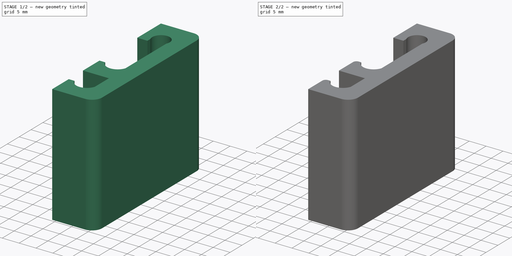
[diagram: build sequence overview — one tinted view per stage of 2, left to right]
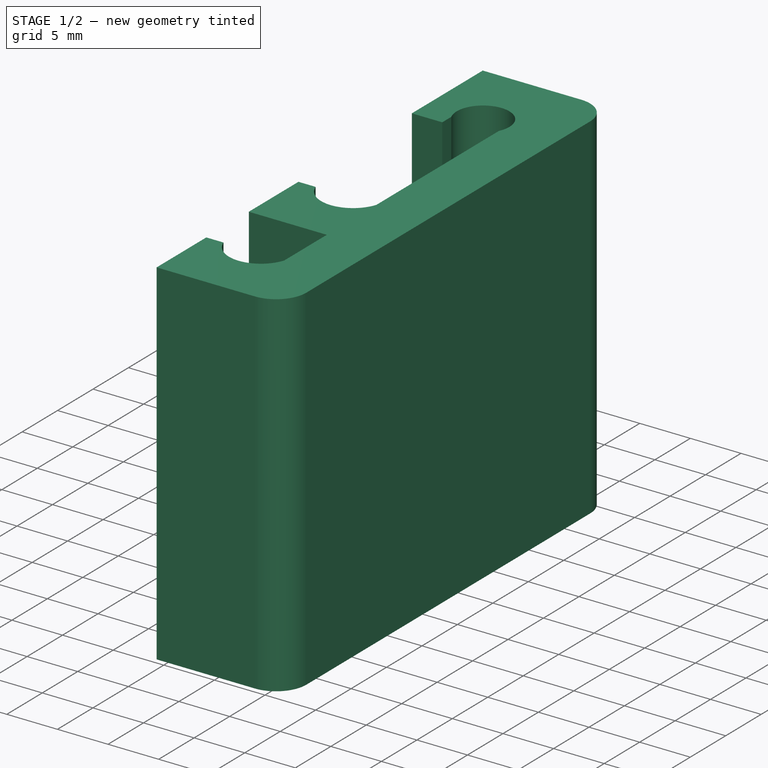
[diagram: stage 1 of 2 — iso view after this stage's code; geometry added in this stage tinted green]
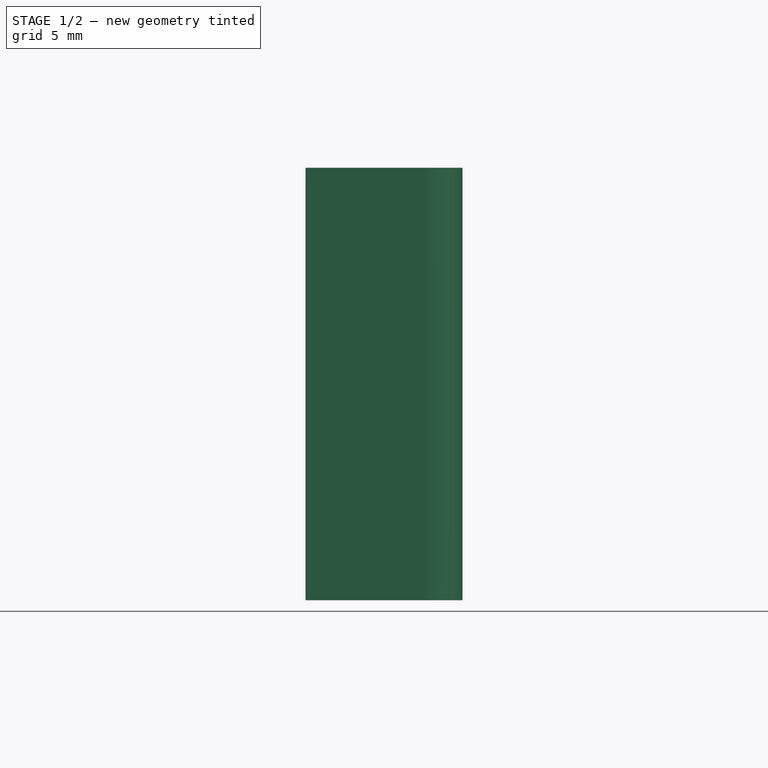
[diagram: stage 1 of 2 — front view after this stage's code; geometry added in this stage tinted green]
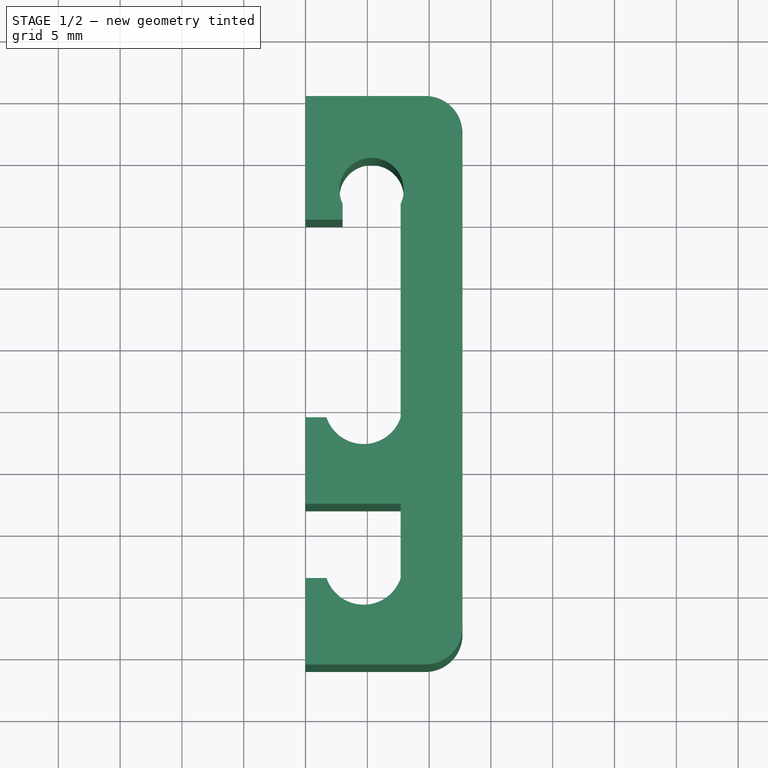
[diagram: stage 1 of 2 — top view after this stage's code; geometry added in this stage tinted green]
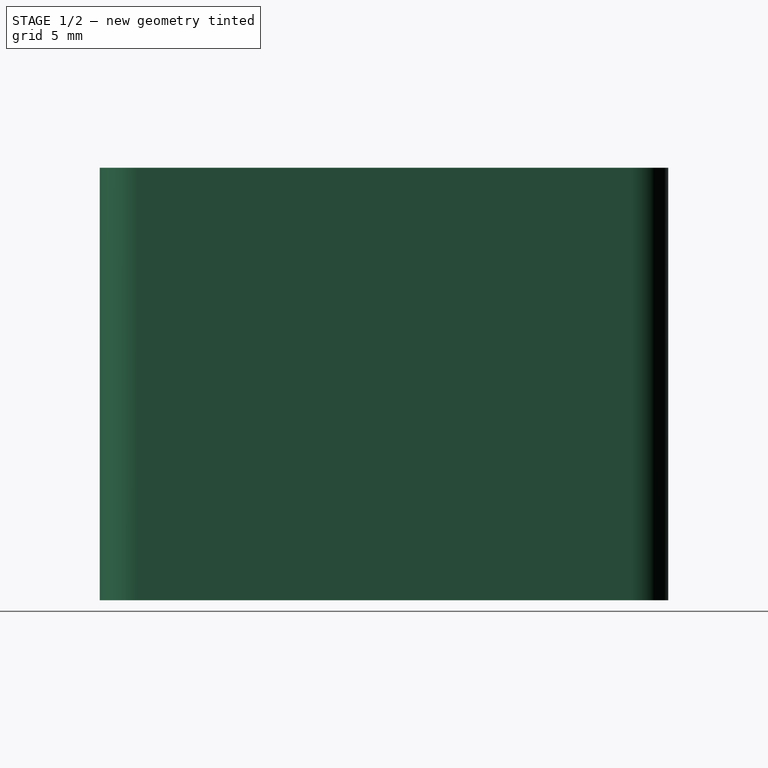
[diagram: stage 1 of 2 — right view after this stage's code; geometry added in this stage tinted green]
FCSTD DOCUMENT  (FreeCAD 0.17R13541 (Git))
Label: SandwichMakerClip
License: All rights reserved
LicenseURL: http://en.wikipedia.org/wiki/All_rights_reserved
objects: Part::Fillet×2, Sketcher::SketchObject×1, PartDesign::Pad×1, PartDesign::Body×1
note: 6 computed .brp shape members not serialized (recipe doc carries the construction recipe); baked Part::Feature solids carry a one-line shape summary decoded from their .brp

FEATURE [Sketcher::SketchObject] Sketch
  MapMode = 5
  Support = -> [XY_Plane]
  expr: Constraints[49] = Constraints.w1
  expr: Constraints[44] = Constraints.c2
  expr: Constraints[27] = 21mm - Constraints.upperRadius
  expr: Constraints[20] = Constraints.upperRadius + 5mm
  expr: Constraints[45] = Constraints.c3
  expr: Constraints[43] = Constraints.c1
  sketch-geometry (16):
    g0: LineSegment StartX=0 StartY=0 StartZ=0 EndX=0 EndY=-10 EndZ=0
    g1: LineSegment StartX=0 StartY=-10 StartZ=0 EndX=3 EndY=-10 EndZ=0
    g2: LineSegment StartX=0 StartY=0 StartZ=0 EndX=12.7 EndY=0 EndZ=0
    g3: ArcOfCircle CenterX=5.35 CenterY=-7.6 CenterZ=0 NormalX=0 NormalY=0 NormalZ=1 AngleXU=0 Radius=2.6 StartAngle=5.84106 EndAngle=9.8669
    g4: LineSegment StartX=3 StartY=-10 StartZ=0 EndX=3 EndY=-8.71243 EndZ=0
    g5: LineSegment StartX=7.7 StartY=-8.71243 StartZ=0 EndX=7.7 EndY=-26 EndZ=0
    g6: LineSegment StartX=1.7 StartY=-26 StartZ=0 EndX=0 EndY=-26 EndZ=0
    g7: LineSegment StartX=0 StartY=-26 StartZ=0 EndX=0 EndY=-33 EndZ=0
    g8: LineSegment StartX=12.7 StartY=-46 StartZ=0 EndX=12.7 EndY=0 EndZ=0
    g9: ArcOfCircle CenterX=4.7 CenterY=-25 CenterZ=0 NormalX=0 NormalY=0 NormalZ=1 AngleXU=0 Radius=3.16228 StartAngle=3.46334 EndAngle=5.96143
    g10: LineSegment StartX=0 StartY=-33 StartZ=0 EndX=7.7 EndY=-33 EndZ=0
    g11: LineSegment StartX=7.7 StartY=-33 StartZ=0 EndX=7.7 EndY=-39 EndZ=0
    g12: LineSegment StartX=1.7 StartY=-39 StartZ=0 EndX=0 EndY=-39 EndZ=0
    g13: LineSegment StartX=0 StartY=-39 StartZ=0 EndX=0 EndY=-46 EndZ=0
    g14: LineSegment StartX=0 StartY=-46 StartZ=0 EndX=12.7 EndY=-46 EndZ=0
    g15: ArcOfCircle CenterX=4.7 CenterY=-38 CenterZ=0 NormalX=0 NormalY=0 NormalZ=1 AngleXU=0 Radius=3.16228 StartAngle=3.46334 EndAngle=5.96143
  constraints (51):
    c: Coincident(g0,g-1)
    c: Coincident(g1,g0)
    c: Horizontal(g1)
    c: Coincident(g2,g-1)
    c: Horizontal(g2)
    c: Vertical(g0)
    c: DistanceY(g0,g0) = 10
    c: DistanceX(g1,g1) = 3
    c: Coincident(g4,g1)
    c: Vertical(g4)
    c: Coincident(g4,g3)
    c: Coincident(g5,g3)
    c: Vertical(g5)
    c: PointOnObject(g6,g-2)
    c: Horizontal(g6)
    c: Coincident(g7,g6)
    c: Vertical(g7)
    c: PointOnObject(g8,g-1)
    c: Vertical(g8)
    c: Coincident(g2,g8)
    c: DistanceY(g3,g2) = 7.6
    c: DistanceX(g1,g3) = 4.7
    c: DistanceX(g6,g5) = 6  'c1'
    c: Coincident(g9,g6)
    c: Coincident(g9,g5)
    c: DistanceY(g7,g7) = 7  'c3'
    c: DistanceY(g6,g5) = 0
    c: DistanceY(g6,g3) = 18.4
    c: DistanceY(g6,g9) = 1  'c2'
    c: DistanceX(g5,g8) = 5  'w1'
    c: DistanceY(g3,g3) = 0
    c: Radius(g3) = 2.6  'upperRadius'
    c: Coincident(g10,g7)
    c: Horizontal(g10)
    c: Vertical(g11)
    c: PointOnObject(g12,g-2)
    c: Horizontal(g12)
    c: Vertical(g13)
    c: Coincident(g14,g13)
    c: Horizontal(g14)
    c: Coincident(g8,g14)
    c: Coincident(g15,g11)
    c: Coincident(g15,g12)
    c: DistanceX(g12,g11) = 6
    c: DistanceY(g12,g15) = 1
    c: DistanceY(g13,g13) = 7
    c: Coincident(g13,g12)
    c: Coincident(g11,g10)
    c: DistanceY(g12,g11) = 0
    c: DistanceX(g11,g8) = 5
    c: DistanceY(g12,g7) = 6
FEATURE [PartDesign::Pad] Pad
  Length = 35
  Length2 = 100
  Profile = -> Sketch
  Type = 0
FEATURE [PartDesign::Body] Body
  Group = -> [Sketch,Pad]
  Origin = -> Origin
  Tip = -> Pad
FEATURE [Part::Fillet] Fillet
  Base = -> Pad
  Edges = 2 edges r=3: [Edge8,Edge11]
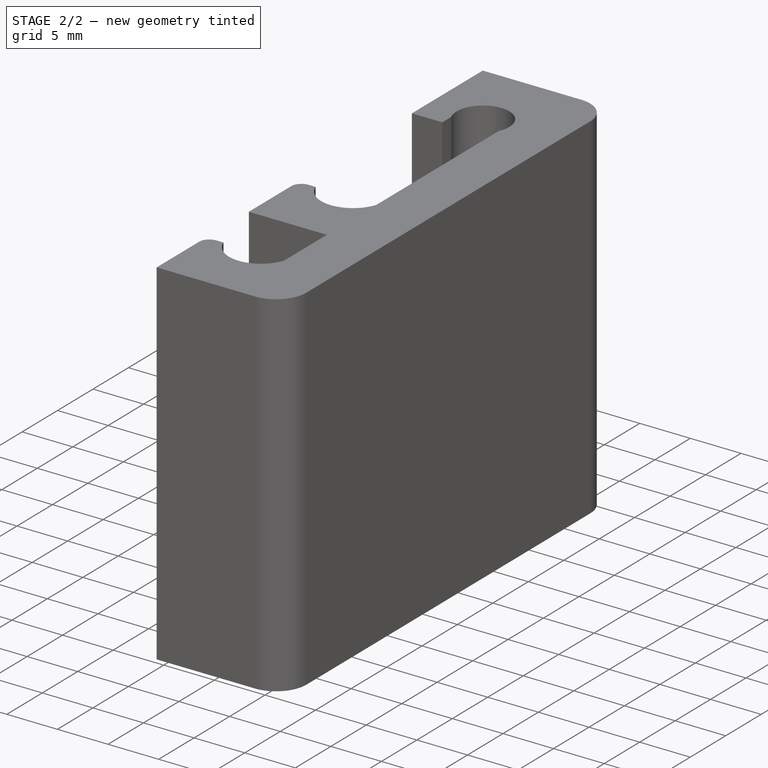
[diagram: stage 2 of 2 — iso view after this stage's code; geometry added in this stage tinted green]
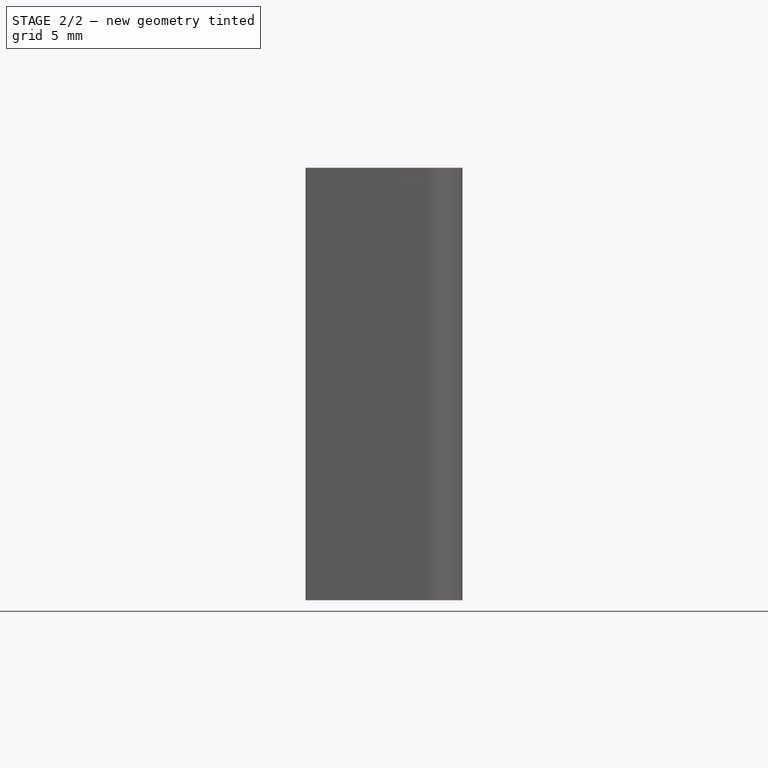
[diagram: stage 2 of 2 — front view after this stage's code; geometry added in this stage tinted green]
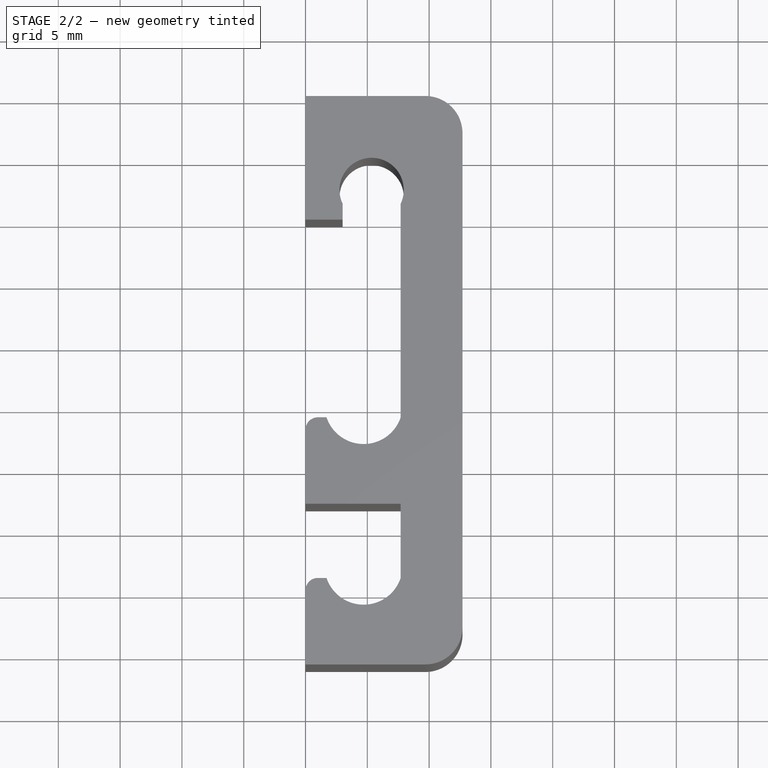
[diagram: stage 2 of 2 — top view after this stage's code; geometry added in this stage tinted green]
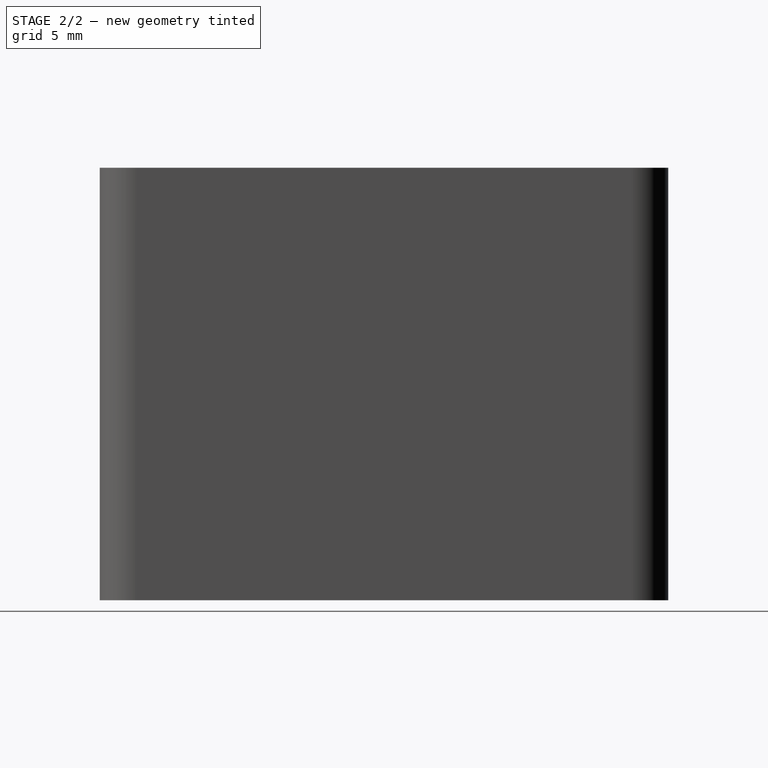
[diagram: stage 2 of 2 — right view after this stage's code; geometry added in this stage tinted green]
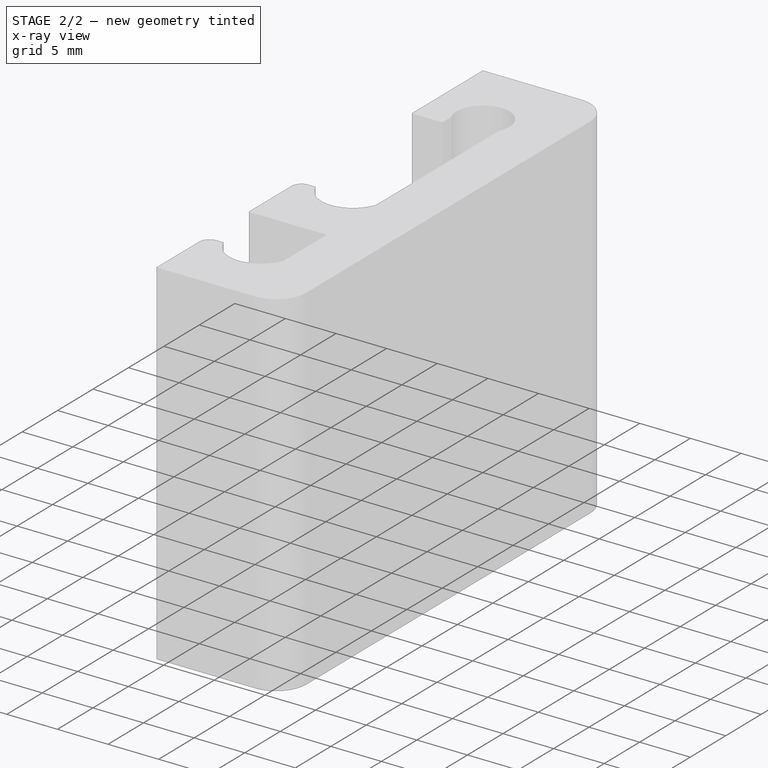
[diagram: stage 2 of 2 — x-ray composite at the iso view; earlier geometry ghosted, this stage's added geometry solid]
FEATURE [Part::Fillet] Fillet001
  Base = -> Fillet
  Edges = 2 edges r=1: [Edge24,Edge50]
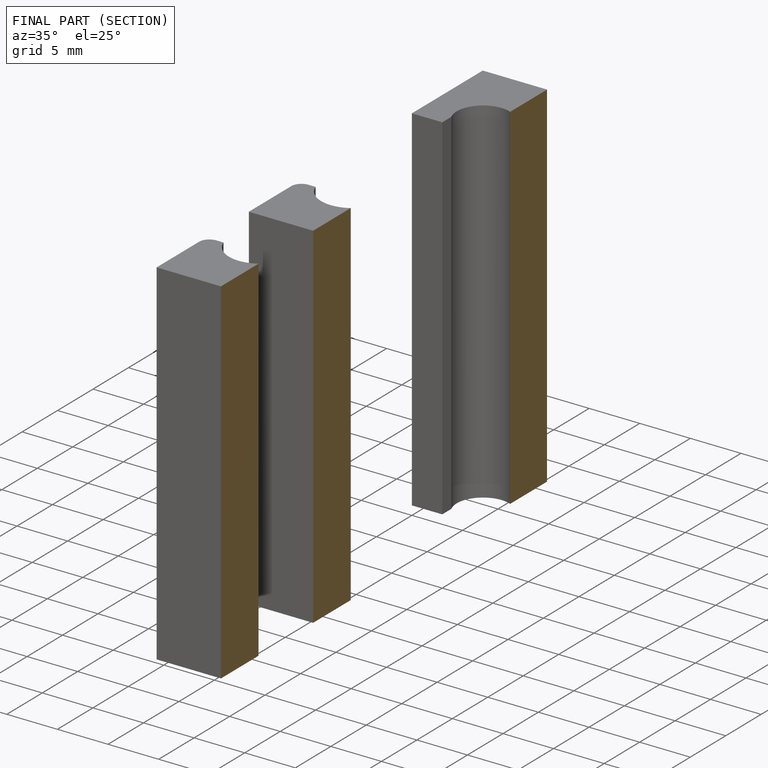
[diagram: finished part — half-section view (interior)]
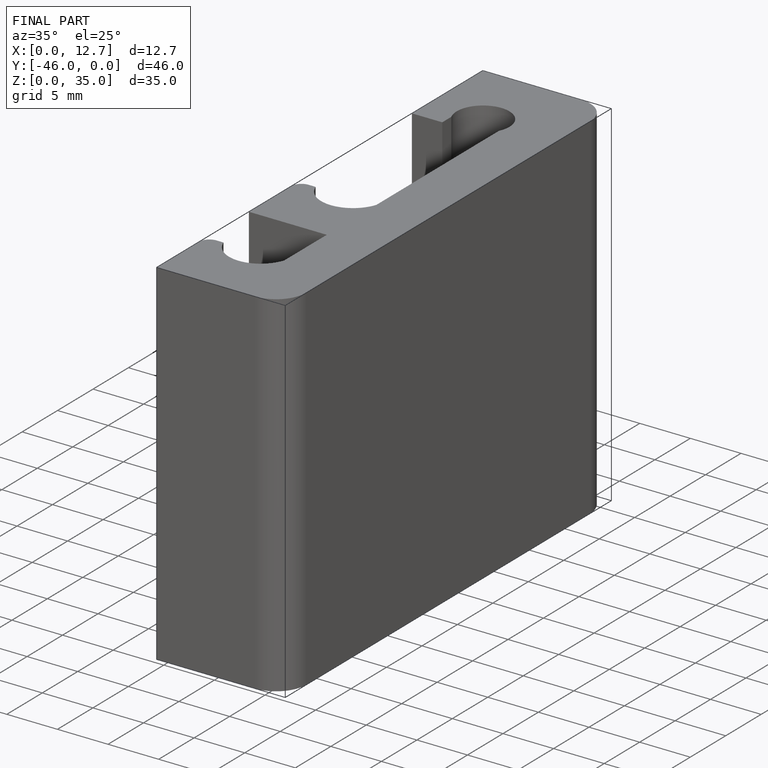
[diagram: finished part — iso view with bounding-box wireframe]
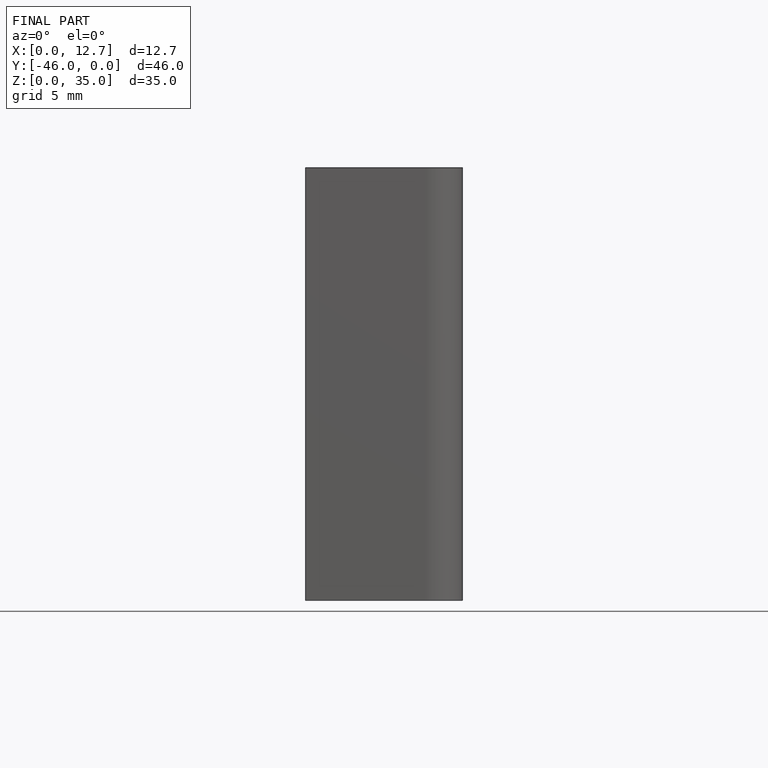
[diagram: finished part — front view with bounding-box wireframe]
